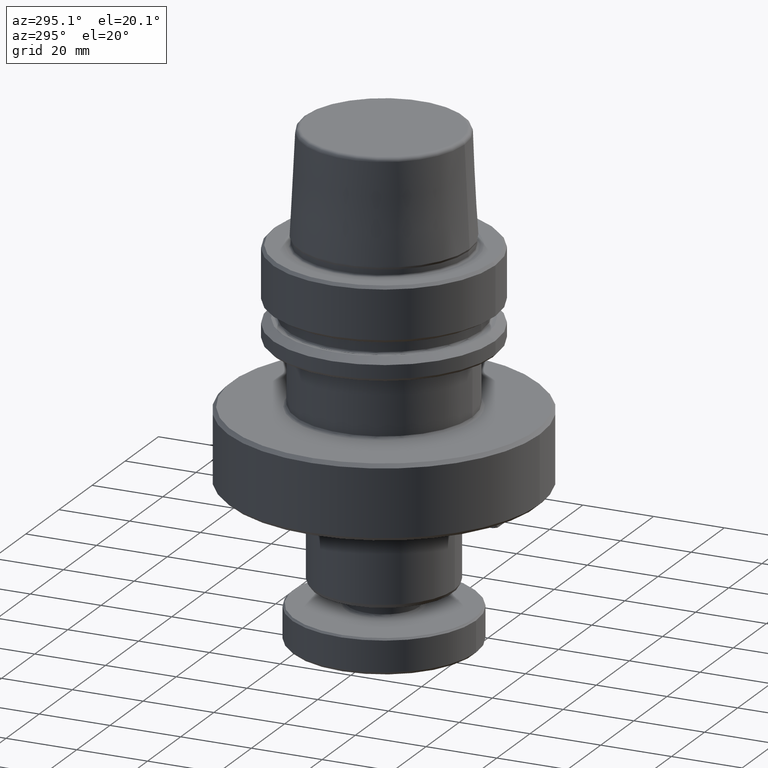
[diagram: clean part render]
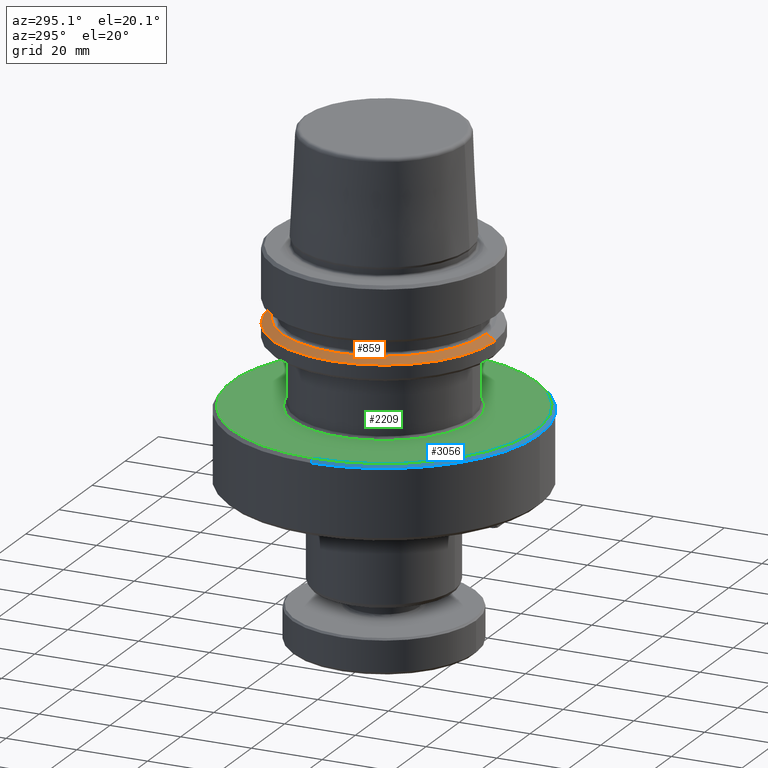
[diagram: same view with three faces highlighted in distinct colors, each labeled with its STEP entity id]
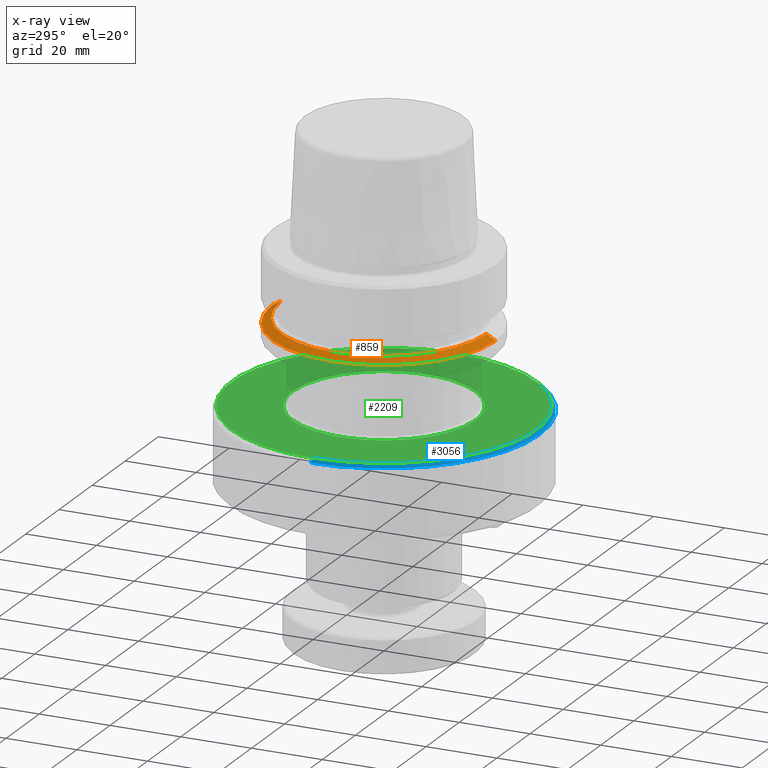
[diagram: x-ray of the same camera — body ghosted, the three highlighted faces saturated]
A machine part, auxiliary view with three faces highlighted in distinct colors.
The next image is the same camera in x-ray (body ghosted, the three faces saturated) — at least one of them is partly hidden behind the body in this view.
Their STEP definitions:

[orange] entity #859 — the highlighted conical surface has half-angle 60 deg.
#4 = CIRCLE ( 'NONE', #9, 28.94089653438187800 ) ;
#9 = AXIS2_PLACEMENT_3D ( 'NONE', #1927, #277, #2203 ) ;
#15 = CARTESIAN_POINT ( 'NONE',  ( 0.0000000000000000000, -1.394837423287449700E-016, -21.37749907477165600 ) ) ;
#50 = EDGE_LOOP ( 'NONE', ( #2646, #2135, #2986, #252 ) ) ;
#87 = CONICAL_SURFACE ( 'NONE', #782, 31.50000000000169500, 1.047197551196597900 ) ;
#220 = VERTEX_POINT ( 'NONE', #1206 ) ;
#252 = ORIENTED_EDGE ( 'NONE', *, *, #3162, .T. ) ;
#277 = DIRECTION ( 'NONE',  ( -0.0000000000000000000, 1.342951762274862300E-018, 1.000000000000000000 ) ) ;
#294 = DIRECTION ( 'NONE',  ( 0.0000000000000000000, -1.000000000000000000, 0.0000000000000000000 ) ) ;
#444 = DIRECTION ( 'NONE',  ( 0.0000000000000000000, 0.8660254037844387100, -0.4999999999999998900 ) ) ;
#705 = VERTEX_POINT ( 'NONE', #3048 ) ;
#782 = AXIS2_PLACEMENT_3D ( 'NONE', #3052, #1134, #2499 ) ;
#859 = ADVANCED_FACE ( 'NONE', ( #1003 ), #87, .T. ) ;
#986 = CARTESIAN_POINT ( 'NONE',  ( 3.857637417314370200E-015, 31.50000000000169500, -21.37749907477165600 ) ) ;
#1003 = FACE_OUTER_BOUND ( 'NONE', #50, .T. ) ;
#1134 = DIRECTION ( 'NONE',  ( 0.0000000000000000000, -1.342951762274862300E-018, -1.000000000000000000 ) ) ;
#1206 = CARTESIAN_POINT ( 'NONE',  ( 0.0000000000000000000, 28.94089653438187800, -19.90000000001195000 ) ) ;
#1356 = CARTESIAN_POINT ( 'NONE',  ( 3.857637417314370200E-015, -31.50000000000169500, -21.37749907477165600 ) ) ;
#1495 = VECTOR ( 'NONE', #444, 1000.000000000000000 ) ;
#1545 = CIRCLE ( 'NONE', #2014, 31.50000000000169500 ) ;
#1617 = EDGE_CURVE ( 'NONE', #220, #705, #4, .T. ) ;
#1660 = VERTEX_POINT ( 'NONE', #3597 ) ;
#1904 = DIRECTION ( 'NONE',  ( 1.060575238724906900E-016, -0.8660254037844387100, -0.4999999999999998900 ) ) ;
#1927 = CARTESIAN_POINT ( 'NONE',  ( 0.0000000000000000000, -1.374995323425369500E-016, -19.90000000001195000 ) ) ;
#1947 = DIRECTION ( 'NONE',  ( -0.0000000000000000000, 1.342951762274862300E-018, 1.000000000000000000 ) ) ;
#2014 = AXIS2_PLACEMENT_3D ( 'NONE', #15, #1947, #294 ) ;
#2135 = ORIENTED_EDGE ( 'NONE', *, *, #1617, .F. ) ;
#2139 = VERTEX_POINT ( 'NONE', #986 ) ;
#2203 = DIRECTION ( 'NONE',  ( 0.0000000000000000000, -1.000000000000000000, 0.0000000000000000000 ) ) ;
#2328 = VECTOR ( 'NONE', #1904, 1000.000000000000000 ) ;
#2481 = LINE ( 'NONE', #3478, #1495 ) ;
#2499 = DIRECTION ( 'NONE',  ( 0.0000000000000000000, 1.000000000000000000, 0.0000000000000000000 ) ) ;
#2580 = EDGE_CURVE ( 'NONE', #705, #1660, #3061, .T. ) ;
#2646 = ORIENTED_EDGE ( 'NONE', *, *, #2580, .F. ) ;
#2986 = ORIENTED_EDGE ( 'NONE', *, *, #3445, .T. ) ;
#3048 = CARTESIAN_POINT ( 'NONE',  ( 3.700937523921459300E-015, -28.94089653438187800, -19.90000000001195000 ) ) ;
#3052 = CARTESIAN_POINT ( 'NONE',  ( 0.0000000000000000000, -1.394837423287449700E-016, -21.37749907477165600 ) ) ;
#3061 = LINE ( 'NONE', #1356, #2328 ) ;
#3162 = EDGE_CURVE ( 'NONE', #2139, #1660, #1545, .T. ) ;
#3445 = EDGE_CURVE ( 'NONE', #220, #2139, #2481, .T. ) ;
#3478 = CARTESIAN_POINT ( 'NONE',  ( 0.0000000000000000000, 31.50000000000169500, -21.37749907477165600 ) ) ;
#3597 = CARTESIAN_POINT ( 'NONE',  ( 0.0000000000000000000, -31.50000000000169500, -21.37749907477165600 ) ) ;

[blue] entity #3056 — the highlighted conical surface has half-angle 45 deg.
#139 = CARTESIAN_POINT ( 'NONE',  ( 0.0000000000000000000, 0.0000000000000000000, -45.00000000000001400 ) ) ;
#233 = EDGE_CURVE ( 'NONE', #3278, #556, #2496, .T. ) ;
#279 = ORIENTED_EDGE ( 'NONE', *, *, #1711, .F. ) ;
#422 = DIRECTION ( 'NONE',  ( 0.0000000000000000000, 0.0000000000000000000, -1.000000000000000000 ) ) ;
#556 = VERTEX_POINT ( 'NONE', #2134 ) ;
#653 = VERTEX_POINT ( 'NONE', #829 ) ;
#671 = CARTESIAN_POINT ( 'NONE',  ( 0.0000000000000000000, 1.057649508354530300E-016, -45.00000000000001400 ) ) ;
#829 = CARTESIAN_POINT ( 'NONE',  ( 44.00000000000000000, 5.388445916248353600E-015, -45.00000000000001400 ) ) ;
#867 = DIRECTION ( 'NONE',  ( 0.0000000000000000000, 0.0000000000000000000, -1.000000000000000000 ) ) ;
#884 = ORIENTED_EDGE ( 'NONE', *, *, #233, .F. ) ;
#935 = DIRECTION ( 'NONE',  ( 0.0000000000000000000, 1.000000000000000000, 0.0000000000000000000 ) ) ;
#1062 = CONICAL_SURFACE ( 'NONE', #3566, 44.00000000000000000, 0.7853981633974482800 ) ;
#1119 = AXIS2_PLACEMENT_3D ( 'NONE', #3060, #1423, #3343 ) ;
#1423 = DIRECTION ( 'NONE',  ( 0.0000000000000000000, 5.566576359760684800E-018, -1.000000000000000000 ) ) ;
#1654 = CARTESIAN_POINT ( 'NONE',  ( 44.00000000000000000, 5.388445916248353600E-015, -45.00000000000001400 ) ) ;
#1658 = EDGE_CURVE ( 'NONE', #2021, #653, #2860, .T. ) ;
#1711 = EDGE_CURVE ( 'NONE', #653, #3278, #1950, .T. ) ;
#1858 = DIRECTION ( 'NONE',  ( -0.7071067811865474600, 0.0000000000000000000, -0.7071067811865475700 ) ) ;
#1950 = CIRCLE ( 'NONE', #1119, 44.00000000000000000 ) ;
#1971 = FACE_OUTER_BOUND ( 'NONE', #2693, .T. ) ;
#2021 = VERTEX_POINT ( 'NONE', #2609 ) ;
#2128 = VECTOR ( 'NONE', #2483, 1000.000000000000000 ) ;
#2134 = CARTESIAN_POINT ( 'NONE',  ( -44.00000000000000000, 0.0000000000000000000, -45.00000000000001400 ) ) ;
#2483 = DIRECTION ( 'NONE',  ( 0.7071067811865474600, 8.659560562354931600E-017, -0.7071067811865475700 ) ) ;
#2496 = CIRCLE ( 'NONE', #3495, 44.00000000000000000 ) ;
#2511 = EDGE_CURVE ( 'NONE', #3249, #556, #3319, .T. ) ;
#2518 = CARTESIAN_POINT ( 'NONE',  ( 0.0000000000000000000, 0.0000000000000000000, -44.00000000000002100 ) ) ;
#2535 = CARTESIAN_POINT ( 'NONE',  ( 5.388445916248353600E-015, -44.00000000000000000, -45.00000000000001400 ) ) ;
#2584 = DIRECTION ( 'NONE',  ( 0.0000000000000000000, 5.566576359760684800E-018, -1.000000000000000000 ) ) ;
#2594 = ORIENTED_EDGE ( 'NONE', *, *, #1658, .F. ) ;
#2609 = CARTESIAN_POINT ( 'NONE',  ( 43.00000000000000000, 5.327213576290986800E-015, -44.00000000000002100 ) ) ;
#2684 = VECTOR ( 'NONE', #1858, 1000.000000000000000 ) ;
#2693 = EDGE_LOOP ( 'NONE', ( #2594, #3125, #2844, #884, #279 ) ) ;
#2773 = EDGE_CURVE ( 'NONE', #2021, #3249, #3369, .T. ) ;
#2793 = CARTESIAN_POINT ( 'NONE',  ( -43.00000000000000000, 0.0000000000000000000, -44.00000000000002100 ) ) ;
#2798 = DIRECTION ( 'NONE',  ( -1.000000000000000000, 0.0000000000000000000, 0.0000000000000000000 ) ) ;
#2844 = ORIENTED_EDGE ( 'NONE', *, *, #2511, .T. ) ;
#2860 = LINE ( 'NONE', #1654, #2128 ) ;
#3056 = ADVANCED_FACE ( 'NONE', ( #1971 ), #1062, .T. ) ;
#3060 = CARTESIAN_POINT ( 'NONE',  ( 0.0000000000000000000, 1.057649508354530300E-016, -45.00000000000001400 ) ) ;
#3125 = ORIENTED_EDGE ( 'NONE', *, *, #2773, .T. ) ;
#3249 = VERTEX_POINT ( 'NONE', #2793 ) ;
#3254 = AXIS2_PLACEMENT_3D ( 'NONE', #2518, #867, #2798 ) ;
#3278 = VERTEX_POINT ( 'NONE', #2535 ) ;
#3319 = LINE ( 'NONE', #3520, #2684 ) ;
#3343 = DIRECTION ( 'NONE',  ( 0.0000000000000000000, 1.000000000000000000, 0.0000000000000000000 ) ) ;
#3369 = CIRCLE ( 'NONE', #3254, 43.00000000000000000 ) ;
#3454 = DIRECTION ( 'NONE',  ( -1.000000000000000000, 0.0000000000000000000, 0.0000000000000000000 ) ) ;
#3495 = AXIS2_PLACEMENT_3D ( 'NONE', #671, #2584, #935 ) ;
#3520 = CARTESIAN_POINT ( 'NONE',  ( -44.00000000000000000, 0.0000000000000000000, -45.00000000000001400 ) ) ;
#3566 = AXIS2_PLACEMENT_3D ( 'NONE', #139, #422, #3454 ) ;

[green] entity #2209 — the highlighted planar face has unit normal (0, -0, 1).
#51 = CARTESIAN_POINT ( 'NONE',  ( 3.159588741800171900E-015, -25.80000000000000100, -44.00000000000001400 ) ) ;
#62 = CARTESIAN_POINT ( 'NONE',  ( -4.646147094753788000, -25.37821681741874600, -44.00000000000002100 ) ) ;
#75 = CARTESIAN_POINT ( 'NONE',  ( -13.47494215624665700, -22.00346005347343600, -44.00000000000002100 ) ) ;
#84 = CARTESIAN_POINT ( 'NONE',  ( -21.53341588032837000, -14.21109007750851000, -44.00000000000002100 ) ) ;
#99 = CARTESIAN_POINT ( 'NONE',  ( -25.22750292479134500, -5.412237827912585800, -44.00000000000002100 ) ) ;
#100 = ORIENTED_EDGE ( 'NONE', *, *, #776, .T. ) ;
#106 = CARTESIAN_POINT ( 'NONE',  ( -25.40019798619532300, 4.524846068160585800, -44.00000000000001400 ) ) ;
#116 = CARTESIAN_POINT ( 'NONE',  ( -23.12779965881840700, 11.49284650511913800, -44.00000000000002800 ) ) ;
#123 = DIRECTION ( 'NONE',  ( 0.0000000000000000000, 0.0000000000000000000, -1.000000000000000000 ) ) ;
#126 = CARTESIAN_POINT ( 'NONE',  ( -14.44259721332349100, 21.37928729366193900, -44.00000000000001400 ) ) ;
#143 = CARTESIAN_POINT ( 'NONE',  ( -7.535404113839290700, 24.70003495132506900, -44.00000000000003600 ) ) ;
#166 = CARTESIAN_POINT ( 'NONE',  ( 4.524864639360868200, 25.40019454994415300, -44.00000000000001400 ) ) ;
#175 = CARTESIAN_POINT ( 'NONE',  ( 11.49284650508246700, 23.12779965883751700, -44.00000000000002100 ) ) ;
#189 = CARTESIAN_POINT ( 'NONE',  ( 21.37928729366629100, 14.44259721331797900, -44.00000000000002100 ) ) ;
#198 = CARTESIAN_POINT ( 'NONE',  ( 24.70003495132065300, 7.535404113886145600, -44.00000000000002100 ) ) ;
#207 = CARTESIAN_POINT ( 'NONE',  ( 25.48706632873925000, -4.014918217729788600, -44.00000000000001400 ) ) ;
#224 = CARTESIAN_POINT ( 'NONE',  ( 24.00859108745828500, -9.446187900193358200, -44.00000000000003600 ) ) ;
#238 = CARTESIAN_POINT ( 'NONE',  ( 15.39733050729729400, -20.71037158427629200, -44.00000000000002800 ) ) ;
#247 = CARTESIAN_POINT ( 'NONE',  ( 9.545456535214857000, -23.96929158735009900, -44.00000000000001400 ) ) ;
#281 = CARTESIAN_POINT ( 'NONE',  ( -1.578232523932755500, 25.80000000000001100, -44.00000000000002800 ) ) ;
#299 = CARTESIAN_POINT ( 'NONE',  ( 0.0000000000000000000, 25.80000000000000100, -44.00000000000001400 ) ) ;
#321 = CARTESIAN_POINT ( 'NONE',  ( -0.7889384917465004400, -25.80000000000000800, -44.00000000000004300 ) ) ;
#341 = CARTESIAN_POINT ( 'NONE',  ( -5.517234247986863200, -25.21707412533733400, -44.00000000000002800 ) ) ;
#355 = CARTESIAN_POINT ( 'NONE',  ( -13.93514321310749800, -21.71301370394710500, -44.00000000000002100 ) ) ;
#366 = CARTESIAN_POINT ( 'NONE',  ( -22.07149427188638300, -13.38842431697809900, -44.00000000000003600 ) ) ;
#378 = CARTESIAN_POINT ( 'NONE',  ( -25.33543056681472500, -4.874507129608150400, -44.00000000000002100 ) ) ;
#386 = CARTESIAN_POINT ( 'NONE',  ( -25.37821782295765500, 4.646141660323854300, -44.00000000000000700 ) ) ;
#401 = CARTESIAN_POINT ( 'NONE',  ( -22.00346005345332400, 13.47494215628029000, -44.00000000000003600 ) ) ;
#410 = CARTESIAN_POINT ( 'NONE',  ( -14.21109007751056000, 21.53341588032704500, -44.00000000000002100 ) ) ;
#424 = CARTESIAN_POINT ( 'NONE',  ( -5.412237827916562200, 25.22750292479022200, -44.00000000000002100 ) ) ;
#451 = CARTESIAN_POINT ( 'NONE',  ( 4.646147094753429100, 25.37821681741872100, -44.00000000000002800 ) ) ;
#463 = CARTESIAN_POINT ( 'NONE',  ( 13.47494215626425700, 22.00346005346168000, -44.00000000000002100 ) ) ;
#473 = CARTESIAN_POINT ( 'NONE',  ( 21.53341588032834200, 14.21109007750890100, -44.00000000000003600 ) ) ;
#481 = CARTESIAN_POINT ( 'NONE',  ( 25.22750292478829000, 5.412237827937061300, -44.00000000000000700 ) ) ;
#498 = CARTESIAN_POINT ( 'NONE',  ( 25.40019798619532000, -4.524846068166298500, -44.00000000000001400 ) ) ;
#507 = B_SPLINE_CURVE_WITH_KNOTS ( 'NONE', 3,
 ( #51, #321, #2815, #1164, #3092, #1447, #3367, #1720, #62, #1994, #341, #2271, #631, #2541, #894, #2826, #1174, #3102, #1456, #3383, #1727, #75, #2005, #355, #2279, #646, #2557, #905, #2837, #1189, #3114, #1467, #3392, #1741, #84, #2019, #366, #2292, #655, #2569, #917, #2851, #1198, #3126, #1476, #3406, #1755, #99, #2026, #378, #2304, #665, #2579, #930, #2861, #1209, #3133, #1490, #3415, #1764, #106, #2040, #386, #2313, #677, #2590, #940, #2871, #1224, #3141, #1500, #3431, #1773, #116, #2051, #401, #2321, #692, #2607, #952, #2882, #1239, #3157, #1509, #3443, #1791, #126, #2063, #410, #2340, #700, #2621, #969, #2894, #1253, #3168, #1525, #3456, #1805, #143, #2074, #424, #2355, #715, #2631, #983, #2909, #1932, #281, #2210 ),
 .UNSPECIFIED., .F., .F.,
 ( 4, 1, 1, 1, 1, 1, 2, 2, 1, 1, 1, 1, 2, 2, 1, 1, 1, 1, 2, 2, 2, 1, 1, 1, 1, 2, 2, 1, 1, 1, 1, 2, 2, 1, 1, 1, 1, 1, 2, 2, 2, 1, 1, 1, 1, 1, 2, 2, 1, 1, 1, 1, 2, 2, 1, 1, 1, 1, 2, 2, 2, 1, 1, 1, 1, 2, 2, 1, 1, 1, 1, 2, 2, 1, 1, 1, 1, 1, 2, 2, 4 ),
 ( 0.0000000000000000000, 0.03125000000000045100, 0.04687500000000068000, 0.05468750000000079100, 0.05859375000000084700, 0.06054687500000086000, 0.06152343750000085300, 0.06250000000000084700, 0.09375000000000098500, 0.1093750000000010700, 0.1171875000000011100, 0.1210937500000011500, 0.1230468750000011400, 0.1250000000000011100, 0.1562500000000002800, 0.1718749999999998300, 0.1796874999999996400, 0.1835937499999996100, 0.1855468749999995800, 0.1874999999999995600, 0.2499999999999981100, 0.2812499999999973900, 0.2968749999999970600, 0.3046874999999969500, 0.3085937499999968900, 0.3105468749999968900, 0.3124999999999968400, 0.3437499999999970600, 0.3593749999999971700, 0.3671874999999972800, 0.3710937499999973400, 0.3730468749999973400, 0.3749999999999972800, 0.4062499999999975600, 0.4218749999999976700, 0.4296874999999977200, 0.4335937499999977200, 0.4355468749999977200, 0.4365234374999977200, 0.4374999999999977800, 0.4999999999999976700, 0.5312499999999975600, 0.5468749999999975600, 0.5546874999999975600, 0.5585937499999975600, 0.5605468749999975600, 0.5615234374999975600, 0.5624999999999975600, 0.5937499999999968900, 0.6093749999999965600, 0.6171874999999963400, 0.6210937499999963400, 0.6230468749999963400, 0.6249999999999963400, 0.6562499999999964500, 0.6718749999999964500, 0.6796874999999964500, 0.6835937499999965600, 0.6855468749999965600, 0.6874999999999965600, 0.7499999999999973400, 0.7812499999999977800, 0.7968749999999980000, 0.8046874999999980000, 0.8085937499999980000, 0.8105468749999980000, 0.8124999999999981100, 0.8437499999999987800, 0.8593749999999991100, 0.8671874999999992200, 0.8710937499999992200, 0.8730468749999992200, 0.8749999999999993300, 0.9062500000000000000, 0.9218750000000003300, 0.9296875000000004400, 0.9335937500000004400, 0.9355468750000005600, 0.9365234375000005600, 0.9375000000000005600, 1.000000000000000000 ),
 .UNSPECIFIED. ) ;
#508 = CARTESIAN_POINT ( 'NONE',  ( 23.12779965883214900, -11.49284650510926100, -44.00000000000002100 ) ) ;
#518 = CARTESIAN_POINT ( 'NONE',  ( 14.44259721331151900, -21.37928729367038400, -44.00000000000002100 ) ) ;
#531 = CARTESIAN_POINT ( 'NONE',  ( 7.535404113869419400, -24.70003495132476700, -44.00000000000002100 ) ) ;
#599 = CIRCLE ( 'NONE', #2998, 43.00000000000000000 ) ;
#631 = CARTESIAN_POINT ( 'NONE',  ( -8.125368334782336900, -24.49352279962959100, -44.00000000000002800 ) ) ;
#646 = CARTESIAN_POINT ( 'NONE',  ( -14.07143322275118700, -21.62493478718439400, -44.00000000000002100 ) ) ;
#655 = CARTESIAN_POINT ( 'NONE',  ( -23.39264884936471500, -10.89798138207336800, -44.00000000000002100 ) ) ;
#665 = CARTESIAN_POINT ( 'NONE',  ( -25.35972166253509000, -4.746068474944360500, -44.00000000000001400 ) ) ;
#675 = EDGE_LOOP ( 'NONE', ( #1949, #2911 ) ) ;
#677 = CARTESIAN_POINT ( 'NONE',  ( -25.21707412534086100, 5.517234247999487800, -44.00000000000002100 ) ) ;
#692 = CARTESIAN_POINT ( 'NONE',  ( -21.71301370394078100, 13.93514321311804800, -44.00000000000002100 ) ) ;
#700 = CARTESIAN_POINT ( 'NONE',  ( -13.38842431698046900, 22.07149427188483100, -44.00000000000002800 ) ) ;
#715 = CARTESIAN_POINT ( 'NONE',  ( -4.874507129609254400, 25.33543056681440600, -44.00000000000000700 ) ) ;
#736 = CARTESIAN_POINT ( 'NONE',  ( 3.159588741800171900E-015, -25.80000000000000100, -44.00000000000001400 ) ) ;
#740 = CARTESIAN_POINT ( 'NONE',  ( 5.517234248010011800, 25.21707412533417200, -44.00000000000001400 ) ) ;
#750 = CARTESIAN_POINT ( 'NONE',  ( 13.93514321311302100, 21.71301370394340300, -44.00000000000002100 ) ) ;
#765 = CARTESIAN_POINT ( 'NONE',  ( 22.07149427186617500, 13.38842431700634200, -44.00000000000004300 ) ) ;
#774 = CARTESIAN_POINT ( 'NONE',  ( 25.33543056681388000, 4.874507129614920900, -44.00000000000001400 ) ) ;
#776 = EDGE_CURVE ( 'NONE', #2745, #1177, #1793, .T. ) ;
#780 = CARTESIAN_POINT ( 'NONE',  ( 25.37821782295765900, -4.646141660325528600, -44.00000000000001400 ) ) ;
#788 = CARTESIAN_POINT ( 'NONE',  ( 22.00346005345933200, -13.47494215627596900, -44.00000000000002100 ) ) ;
#799 = CARTESIAN_POINT ( 'NONE',  ( 14.21109007750696700, -21.53341588032957400, -44.00000000000001400 ) ) ;
#812 = CARTESIAN_POINT ( 'NONE',  ( 5.412237827929740100, -25.22750292479009800, -44.00000000000001400 ) ) ;
#867 = DIRECTION ( 'NONE',  ( 0.0000000000000000000, 0.0000000000000000000, -1.000000000000000000 ) ) ;
#894 = CARTESIAN_POINT ( 'NONE',  ( -9.155797560476431200, -24.12117611923910200, -44.00000000000001400 ) ) ;
#905 = CARTESIAN_POINT ( 'NONE',  ( -16.98414031319189000, -19.50251703443400700, -44.00000000000002800 ) ) ;
#917 = CARTESIAN_POINT ( 'NONE',  ( -23.84596436449473300, -9.850459048703518400, -44.00000000000002800 ) ) ;
#930 = CARTESIAN_POINT ( 'NONE',  ( -25.65639372325769300, -3.143290083947218900, -44.00000000000002100 ) ) ;
#940 = CARTESIAN_POINT ( 'NONE',  ( -24.49352279963422100, 8.125368334798922700, -44.00000000000002100 ) ) ;
#952 = CARTESIAN_POINT ( 'NONE',  ( -21.62493478718416300, 14.07143322275177200, -44.00000000000002100 ) ) ;
#969 = CARTESIAN_POINT ( 'NONE',  ( -10.89798138207648000, 23.39264884936270100, -44.00000000000002100 ) ) ;
#983 = CARTESIAN_POINT ( 'NONE',  ( -4.746068474944679300, 25.35972166253499400, -44.00000000000001400 ) ) ;
#1008 = CARTESIAN_POINT ( 'NONE',  ( 8.125368334812725000, 24.49352279962543500, -44.00000000000002100 ) ) ;
#1020 = CARTESIAN_POINT ( 'NONE',  ( 14.07143322275177500, 21.62493478718398200, -44.00000000000002100 ) ) ;
#1030 = CARTESIAN_POINT ( 'NONE',  ( 23.39264884933820100, 10.89798138211043200, -44.00000000000002800 ) ) ;
#1036 = CARTESIAN_POINT ( 'NONE',  ( 25.35972166253484900, 4.746068474946335800, -44.00000000000002100 ) ) ;
#1051 = CARTESIAN_POINT ( 'NONE',  ( 25.21707412533565300, -5.517234247999045500, -44.00000000000003600 ) ) ;
#1060 = CARTESIAN_POINT ( 'NONE',  ( 21.71301370394265700, -13.93514321311668700, -44.00000000000001400 ) ) ;
#1068 = CARTESIAN_POINT ( 'NONE',  ( 13.38842431700157400, -22.07149427186955700, -44.00000000000001400 ) ) ;
#1077 = CARTESIAN_POINT ( 'NONE',  ( 4.874507129612902100, -25.33543056681438400, -44.00000000000002800 ) ) ;
#1164 = CARTESIAN_POINT ( 'NONE',  ( -3.333902576198189300, -25.58912593481184300, -44.00000000000002800 ) ) ;
#1174 = CARTESIAN_POINT ( 'NONE',  ( -9.399532011116248100, -24.02689128177408100, -44.00000000000002800 ) ) ;
#1177 = VERTEX_POINT ( 'NONE', #736 ) ;
#1189 = CARTESIAN_POINT ( 'NONE',  ( -19.76405892020986200, -16.62592022010995100, -44.00000000000002100 ) ) ;
#1198 = CARTESIAN_POINT ( 'NONE',  ( -23.94825983276295400, -9.598114452495746500, -44.00000000000002100 ) ) ;
#1209 = CARTESIAN_POINT ( 'NONE',  ( -25.80001621530506000, 0.7888508562149739700, -44.00000000000002800 ) ) ;
#1224 = CARTESIAN_POINT ( 'NONE',  ( -24.12117611924054500, 9.155797560481618200, -44.00000000000002800 ) ) ;
#1239 = CARTESIAN_POINT ( 'NONE',  ( -19.50251703440085600, 16.98414031321356200, -44.00000000000002800 ) ) ;
#1253 = CARTESIAN_POINT ( 'NONE',  ( -9.850459048704493600, 23.84596436449410100, -44.00000000000003600 ) ) ;
#1278 = CARTESIAN_POINT ( 'NONE',  ( 0.7889384917407656900, 25.80000000000000400, -44.00000000000002800 ) ) ;
#1288 = CARTESIAN_POINT ( 'NONE',  ( 9.155797560485925900, 24.12117611923781600, -44.00000000000002100 ) ) ;
#1295 = CARTESIAN_POINT ( 'NONE',  ( 16.98414031319243700, 19.50251703442773300, -44.00000000000002800 ) ) ;
#1299 = DIRECTION ( 'NONE',  ( 0.0000000000000000000, -1.000000000000000000, -5.566576359760684800E-018 ) ) ;
#1308 = CARTESIAN_POINT ( 'NONE',  ( 23.84596436448645600, 9.850459048715102000, -44.00000000000002100 ) ) ;
#1322 = CARTESIAN_POINT ( 'NONE',  ( 25.65639372325771100, 3.143290083927562600, -44.00000000000003600 ) ) ;
#1331 = CARTESIAN_POINT ( 'NONE',  ( 24.49352279962736700, -8.125368334798331200, -44.00000000000002100 ) ) ;
#1339 = CARTESIAN_POINT ( 'NONE',  ( 21.62493478718594300, -14.07143322274945300, -44.00000000000002800 ) ) ;
#1348 = FACE_BOUND ( 'NONE', #1695, .T. ) ;
#1354 = CARTESIAN_POINT ( 'NONE',  ( 10.89798138210419000, -23.39264884934263800, -44.00000000000001400 ) ) ;
#1369 = CARTESIAN_POINT ( 'NONE',  ( 4.746068474945748700, -25.35972166253497700, -44.00000000000002800 ) ) ;
#1437 = FACE_OUTER_BOUND ( 'NONE', #675, .T. ) ;
#1447 = CARTESIAN_POINT ( 'NONE',  ( -4.354993695309938900, -25.43012913300111300, -44.00000000000001400 ) ) ;
#1456 = CARTESIAN_POINT ( 'NONE',  ( -10.30733321070539800, -23.66769144666777800, -44.00000000000003600 ) ) ;
#1467 = CARTESIAN_POINT ( 'NONE',  ( -21.16020289421184200, -14.76401221697290800, -44.00000000000002100 ) ) ;
#1476 = CARTESIAN_POINT ( 'NONE',  ( -24.29648344838202300, -8.719035050377346600, -44.00000000000002800 ) ) ;
#1490 = CARTESIAN_POINT ( 'NONE',  ( -25.58914721739974500, 3.333787554563061800, -44.00000000000002100 ) ) ;
#1500 = CARTESIAN_POINT ( 'NONE',  ( -24.02689128177451000, 9.399532011117806000, -44.00000000000002800 ) ) ;
#1509 = CARTESIAN_POINT ( 'NONE',  ( -16.62592022013896900, 19.76405892019089100, -44.00000000000002100 ) ) ;
#1525 = CARTESIAN_POINT ( 'NONE',  ( -9.598114452496028900, 23.94825983276276600, -44.00000000000001400 ) ) ;
#1549 = CARTESIAN_POINT ( 'NONE',  ( 3.333902576190655800, 25.58912593481185700, -44.00000000000001400 ) ) ;
#1555 = PLANE ( 'NONE',  #3205 ) ;
#1561 = CARTESIAN_POINT ( 'NONE',  ( 9.399532011119097400, 24.02689128177368300, -44.00000000000002100 ) ) ;
#1575 = CARTESIAN_POINT ( 'NONE',  ( 19.76405892020941100, 16.62592022011544700, -44.00000000000003600 ) ) ;
#1583 = CARTESIAN_POINT ( 'NONE',  ( 23.94825983276047800, 9.598114452499206800, -44.00000000000004300 ) ) ;
#1589 = CARTESIAN_POINT ( 'NONE',  ( 25.80001621530505300, -0.7888508562419733700, -44.00000000000002800 ) ) ;
#1600 = CARTESIAN_POINT ( 'NONE',  ( 24.12117611923841300, -9.155797560481419200, -44.00000000000001400 ) ) ;
#1614 = CARTESIAN_POINT ( 'NONE',  ( 19.50251703445925200, -16.98414031317239300, -44.00000000000002800 ) ) ;
#1626 = CARTESIAN_POINT ( 'NONE',  ( 9.850459048713144500, -23.84596436448784100, -44.00000000000002100 ) ) ;
#1636 = CARTESIAN_POINT ( 'NONE',  ( 3.143114774646571500, -25.65642616838253800, -44.00000000000002800 ) ) ;
#1695 = EDGE_LOOP ( 'NONE', ( #100, #3055 ) ) ;
#1698 = CARTESIAN_POINT ( 'NONE',  ( 0.0000000000000000000, 25.80000000000000100, -44.00000000000001400 ) ) ;
#1720 = CARTESIAN_POINT ( 'NONE',  ( -4.597637919647716800, -25.38704997307489500, -44.00000000000001400 ) ) ;
#1727 = CARTESIAN_POINT ( 'NONE',  ( -12.82305814050091400, -22.39533791972138100, -44.00000000000002100 ) ) ;
#1737 = EDGE_CURVE ( 'NONE', #1177, #2745, #507, .T. ) ;
#1741 = CARTESIAN_POINT ( 'NONE',  ( -21.47193105296414800, -14.30382881350280600, -44.00000000000002800 ) ) ;
#1755 = CARTESIAN_POINT ( 'NONE',  ( -25.06870380570258700, -6.124894413405167300, -44.00000000000002100 ) ) ;
#1764 = CARTESIAN_POINT ( 'NONE',  ( -25.43013578380982800, 4.354957751048955200, -44.00000000000000700 ) ) ;
#1773 = CARTESIAN_POINT ( 'NONE',  ( -23.66769144664149500, 10.30733321074933100, -44.00000000000002100 ) ) ;
#1788 = CARTESIAN_POINT ( 'NONE',  ( 0.0000000000000000000, 0.0000000000000000000, -44.00000000000002100 ) ) ;
#1791 = CARTESIAN_POINT ( 'NONE',  ( -14.76401221698559000, 21.16020289420354000, -44.00000000000002100 ) ) ;
#1793 = B_SPLINE_CURVE_WITH_KNOTS ( 'NONE', 3,
 ( #1698, #1278, #3189, #1549, #3482, #1824, #166, #2102, #451, #2371, #740, #2658, #1008, #2931, #1288, #3201, #1561, #3494, #1836, #175, #2114, #463, #2386, #750, #2671, #1020, #2942, #1295, #3217, #1575, #3505, #1844, #189, #2124, #473, #2396, #765, #2680, #1030, #2951, #1308, #3224, #1583, #3517, #1856, #198, #2138, #481, #2406, #774, #2695, #1036, #2962, #1322, #3236, #1589, #3530, #1868, #207, #2146, #498, #2417, #780, #2705, #1051, #2969, #1331, #3251, #1600, #3538, #1880, #224, #2154, #508, #2433, #788, #2716, #1060, #2984, #1339, #3262, #1614, #3551, #1888, #238, #2166, #518, #2441, #799, #2730, #1068, #2995, #1354, #3268, #1626, #3562, #1901, #247, #2180, #531, #2449, #812, #2739, #1077, #3005, #1369, #3283, #1636, #3576, #1912 ),
 .UNSPECIFIED., .F., .F.,
 ( 4, 1, 1, 1, 1, 1, 2, 2, 1, 1, 1, 1, 2, 2, 1, 1, 1, 1, 2, 2, 2, 1, 1, 1, 1, 2, 2, 1, 1, 1, 1, 2, 2, 1, 1, 1, 1, 1, 2, 2, 2, 1, 1, 1, 1, 1, 2, 2, 1, 1, 1, 1, 2, 2, 1, 1, 1, 1, 2, 2, 2, 1, 1, 1, 1, 2, 2, 1, 1, 1, 1, 2, 2, 1, 1, 1, 1, 1, 2, 2, 4 ),
 ( 0.0000000000000000000, 0.03124999999999947300, 0.04687499999999921600, 0.05468749999999907000, 0.05859374999999900100, 0.06054687499999894500, 0.06152343749999891800, 0.06249999999999889700, 0.09374999999999905600, 0.1093749999999991400, 0.1171874999999992000, 0.1210937499999992400, 0.1230468749999992600, 0.1249999999999993100, 0.1562499999999996100, 0.1718749999999997500, 0.1796874999999998100, 0.1835937499999998100, 0.1855468749999998300, 0.1874999999999998600, 0.2499999999999987200, 0.2812499999999981100, 0.2968749999999978400, 0.3046874999999976100, 0.3085937499999974500, 0.3105468749999973900, 0.3124999999999972800, 0.3437499999999960000, 0.3593749999999953900, 0.3671874999999950600, 0.3710937499999949500, 0.3730468749999948900, 0.3749999999999947800, 0.4062499999999942300, 0.4218749999999939500, 0.4296874999999937800, 0.4335937499999937300, 0.4355468749999937300, 0.4365234374999936700, 0.4374999999999936700, 0.4999999999999927800, 0.5312499999999923400, 0.5468749999999921200, 0.5546874999999920100, 0.5585937499999919000, 0.5605468749999919000, 0.5615234374999919000, 0.5624999999999917800, 0.5937499999999916700, 0.6093749999999914500, 0.6171874999999914500, 0.6210937499999914500, 0.6230468749999913400, 0.6249999999999913400, 0.6562499999999916700, 0.6718749999999919000, 0.6796874999999920100, 0.6835937499999920100, 0.6855468749999920100, 0.6874999999999919000, 0.7499999999999925600, 0.7812499999999927800, 0.7968749999999930100, 0.8046874999999931200, 0.8085937499999931200, 0.8105468749999932300, 0.8124999999999932300, 0.8437499999999942300, 0.8593749999999946700, 0.8671874999999948900, 0.8710937499999951200, 0.8730468749999951200, 0.8749999999999952300, 0.9062499999999964500, 0.9218749999999971100, 0.9296874999999974500, 0.9335937499999975600, 0.9355468749999976700, 0.9365234374999976700, 0.9374999999999975600, 1.000000000000000000 ),
 .UNSPECIFIED. ) ;
#1805 = CARTESIAN_POINT ( 'NONE',  ( -8.719035050382514000, 24.29648344838056000, -44.00000000000002100 ) ) ;
#1824 = CARTESIAN_POINT ( 'NONE',  ( 4.354993695307582500, 25.43012913300111300, -44.00000000000002100 ) ) ;
#1836 = CARTESIAN_POINT ( 'NONE',  ( 10.30733321072838000, 23.66769144665242300, -44.00000000000003600 ) ) ;
#1844 = CARTESIAN_POINT ( 'NONE',  ( 21.16020289421163300, 14.76401221697529200, -44.00000000000002800 ) ) ;
#1856 = CARTESIAN_POINT ( 'NONE',  ( 24.29648344837803400, 8.719035050409285500, -44.00000000000002800 ) ) ;
#1868 = CARTESIAN_POINT ( 'NONE',  ( 25.58914721739975200, -3.333787554598507200, -44.00000000000002800 ) ) ;
#1880 = CARTESIAN_POINT ( 'NONE',  ( 24.02689128177387400, -9.399532011117745600, -44.00000000000001400 ) ) ;
#1888 = CARTESIAN_POINT ( 'NONE',  ( 16.62592022008787000, -19.76405892022693300, -44.00000000000002800 ) ) ;
#1901 = CARTESIAN_POINT ( 'NONE',  ( 9.598114452498615300, -23.94825983276089300, -44.00000000000002800 ) ) ;
#1912 = CARTESIAN_POINT ( 'NONE',  ( 3.159588741800171900E-015, -25.80000000000000100, -44.00000000000001400 ) ) ;
#1932 = CARTESIAN_POINT ( 'NONE',  ( -3.143114774677247400, 25.65642616838253800, -44.00000000000003600 ) ) ;
#1949 = ORIENTED_EDGE ( 'NONE', *, *, #3015, .F. ) ;
#1994 = CARTESIAN_POINT ( 'NONE',  ( -4.668940892991038500, -25.37403489201669200, -44.00000000000002800 ) ) ;
#2005 = CARTESIAN_POINT ( 'NONE',  ( -13.79757871362362600, -21.80110937118034900, -44.00000000000001400 ) ) ;
#2019 = CARTESIAN_POINT ( 'NONE',  ( -21.56467105928837600, -14.16361084485908800, -44.00000000000002100 ) ) ;
#2021 = VERTEX_POINT ( 'NONE', #2609 ) ;
#2026 = CARTESIAN_POINT ( 'NONE',  ( -25.30051865731104100, -5.054059101346297200, -44.00000000000001400 ) ) ;
#2040 = CARTESIAN_POINT ( 'NONE',  ( -25.38705196039986600, 4.597627179160212100, -44.00000000000002100 ) ) ;
#2051 = CARTESIAN_POINT ( 'NONE',  ( -22.39533791968689200, 12.82305814055856500, -44.00000000000002100 ) ) ;
#2062 = DIRECTION ( 'NONE',  ( -1.000000000000000000, 0.0000000000000000000, 0.0000000000000000000 ) ) ;
#2063 = CARTESIAN_POINT ( 'NONE',  ( -14.30382881350679000, 21.47193105296154100, -44.00000000000003600 ) ) ;
#2074 = CARTESIAN_POINT ( 'NONE',  ( -6.124894413411956500, 25.06870380570066500, -44.00000000000002100 ) ) ;
#2102 = CARTESIAN_POINT ( 'NONE',  ( 4.597637919647011600, 25.38704997307487700, -44.00000000000002800 ) ) ;
#2114 = CARTESIAN_POINT ( 'NONE',  ( 12.82305814053107300, 22.39533791970122700, -44.00000000000002800 ) ) ;
#2124 = CARTESIAN_POINT ( 'NONE',  ( 21.47193105296407400, 14.30382881350356300, -44.00000000000002100 ) ) ;
#2138 = CARTESIAN_POINT ( 'NONE',  ( 25.06870380569735700, 6.124894413447084900, -44.00000000000002100 ) ) ;
#2146 = CARTESIAN_POINT ( 'NONE',  ( 25.43013578380983500, -4.354957751060037900, -44.00000000000002800 ) ) ;
#2154 = CARTESIAN_POINT ( 'NONE',  ( 23.66769144664935400, -10.30733321074369100, -44.00000000000003600 ) ) ;
#2166 = CARTESIAN_POINT ( 'NONE',  ( 14.76401221696323100, -21.16020289421930700, -44.00000000000000700 ) ) ;
#2180 = CARTESIAN_POINT ( 'NONE',  ( 8.719035050399730500, -24.29648344838038900, -44.00000000000002800 ) ) ;
#2209 = ADVANCED_FACE ( 'NONE', ( #1437, #1348 ), #1555, .T. ) ;
#2210 = CARTESIAN_POINT ( 'NONE',  ( 0.0000000000000000000, 25.80000000000000100, -44.00000000000001400 ) ) ;
#2271 = CARTESIAN_POINT ( 'NONE',  ( -6.734449464109880000, -24.93032829826250900, -44.00000000000002100 ) ) ;
#2279 = CARTESIAN_POINT ( 'NONE',  ( -14.02669547702550700, -21.65397793773592000, -44.00000000000004300 ) ) ;
#2292 = CARTESIAN_POINT ( 'NONE',  ( -22.72850858096644800, -12.26358781037912000, -44.00000000000001400 ) ) ;
#2304 = CARTESIAN_POINT ( 'NONE',  ( -25.35005082301141100, -4.797457154194308500, -44.00000000000002800 ) ) ;
#2313 = CARTESIAN_POINT ( 'NONE',  ( -25.37403489201657800, 4.668940892990642400, -44.00000000000001400 ) ) ;
#2321 = CARTESIAN_POINT ( 'NONE',  ( -21.80110937116957700, 13.79757871364164100, -44.00000000000001400 ) ) ;
#2340 = CARTESIAN_POINT ( 'NONE',  ( -14.16361084485893700, 21.56467105928847200, -44.00000000000000700 ) ) ;
#2355 = CARTESIAN_POINT ( 'NONE',  ( -5.054059101348424400, 25.30051865731044800, -44.00000000000002800 ) ) ;
#2371 = CARTESIAN_POINT ( 'NONE',  ( 4.668940892990312000, 25.37403489201679100, -44.00000000000001400 ) ) ;
#2386 = CARTESIAN_POINT ( 'NONE',  ( 13.79757871363305800, 21.80110937117405400, -44.00000000000001400 ) ) ;
#2396 = CARTESIAN_POINT ( 'NONE',  ( 21.56467105928965100, 14.16361084485732600, -44.00000000000002800 ) ) ;
#2406 = CARTESIAN_POINT ( 'NONE',  ( 25.30051865730940700, 5.054059101359391600, -44.00000000000002100 ) ) ;
#2417 = CARTESIAN_POINT ( 'NONE',  ( 25.38705196039986600, -4.597627179163519700, -44.00000000000002800 ) ) ;
#2433 = CARTESIAN_POINT ( 'NONE',  ( 22.39533791969720200, -12.82305814055114500, -44.00000000000001400 ) ) ;
#2441 = CARTESIAN_POINT ( 'NONE',  ( 14.30382881349977400, -21.47193105296649700, -44.00000000000002100 ) ) ;
#2449 = CARTESIAN_POINT ( 'NONE',  ( 6.124894413434543800, -25.06870380570043400, -44.00000000000002100 ) ) ;
#2518 = CARTESIAN_POINT ( 'NONE',  ( 0.0000000000000000000, 0.0000000000000000000, -44.00000000000002100 ) ) ;
#2541 = CARTESIAN_POINT ( 'NONE',  ( -8.813536383084137800, -24.24955287521839500, -44.00000000000002800 ) ) ;
#2557 = CARTESIAN_POINT ( 'NONE',  ( -15.60852090407207100, -20.62006506165959200, -44.00000000000002800 ) ) ;
#2569 = CARTESIAN_POINT ( 'NONE',  ( -23.69912487718174200, -10.20185387526876800, -44.00000000000002100 ) ) ;
#2579 = CARTESIAN_POINT ( 'NONE',  ( -25.36479232986464500, -4.718886700175312800, -44.00000000000002100 ) ) ;
#2590 = CARTESIAN_POINT ( 'NONE',  ( -24.93032829826866600, 6.734449464131985900, -44.00000000000002100 ) ) ;
#2607 = CARTESIAN_POINT ( 'NONE',  ( -21.65397793773267300, 14.02669547703091100, -44.00000000000002800 ) ) ;
#2609 = CARTESIAN_POINT ( 'NONE',  ( 43.00000000000000000, 5.327213576290986800E-015, -44.00000000000002100 ) ) ;
#2621 = CARTESIAN_POINT ( 'NONE',  ( -12.26358781038326400, 22.72850858096373400, -44.00000000000002100 ) ) ;
#2631 = CARTESIAN_POINT ( 'NONE',  ( -4.797457154194941800, 25.35005082301121600, -44.00000000000002100 ) ) ;
#2658 = CARTESIAN_POINT ( 'NONE',  ( 6.734449464150395100, 24.93032829825697800, -44.00000000000002800 ) ) ;
#2671 = CARTESIAN_POINT ( 'NONE',  ( 14.02669547702834100, 21.65397793773401200, -44.00000000000002100 ) ) ;
#2675 = CARTESIAN_POINT ( 'NONE',  ( 0.0000000000000000000, 43.00000000000000000, -44.00000000000002100 ) ) ;
#2680 = CARTESIAN_POINT ( 'NONE',  ( 22.72850858093108100, 12.26358781042854100, -44.00000000000002800 ) ) ;
#2695 = CARTESIAN_POINT ( 'NONE',  ( 25.35005082301092100, 4.797457154198218300, -44.00000000000002100 ) ) ;
#2705 = CARTESIAN_POINT ( 'NONE',  ( 25.37403489201674100, -4.668940892990657500, -44.00000000000001400 ) ) ;
#2716 = CARTESIAN_POINT ( 'NONE',  ( 21.80110937117281000, -13.79757871363933600, -44.00000000000002100 ) ) ;
#2730 = CARTESIAN_POINT ( 'NONE',  ( 14.16361084485761900, -21.56467105928943100, -44.00000000000002100 ) ) ;
#2739 = CARTESIAN_POINT ( 'NONE',  ( 5.054059101355487200, -25.30051865731037000, -44.00000000000001400 ) ) ;
#2745 = VERTEX_POINT ( 'NONE', #299 ) ;
#2773 = EDGE_CURVE ( 'NONE', #2021, #3249, #3369, .T. ) ;
#2793 = CARTESIAN_POINT ( 'NONE',  ( -43.00000000000000000, 0.0000000000000000000, -44.00000000000002100 ) ) ;
#2798 = DIRECTION ( 'NONE',  ( -1.000000000000000000, 0.0000000000000000000, 0.0000000000000000000 ) ) ;
#2815 = CARTESIAN_POINT ( 'NONE',  ( -1.967473204585545900, -25.74615981314345300, -44.00000000000002100 ) ) ;
#2826 = CARTESIAN_POINT ( 'NONE',  ( -9.302090312196275700, -24.06478783943932200, -44.00000000000000700 ) ) ;
#2837 = CARTESIAN_POINT ( 'NONE',  ( -18.87296227532344900, -17.61377391470240300, -44.00000000000002800 ) ) ;
#2851 = CARTESIAN_POINT ( 'NONE',  ( -23.90752446050125400, -9.699147464497802000, -44.00000000000002100 ) ) ;
#2861 = CARTESIAN_POINT ( 'NONE',  ( -25.79996756938989900, -1.577701712429980400, -44.00000000000002800 ) ) ;
#2871 = CARTESIAN_POINT ( 'NONE',  ( -24.24955287522108400, 8.813536383093813600, -44.00000000000002800 ) ) ;
#2882 = CARTESIAN_POINT ( 'NONE',  ( -20.62006506166682100, 15.60852090405336100, -44.00000000000003600 ) ) ;
#2894 = CARTESIAN_POINT ( 'NONE',  ( -10.20185387527057600, 23.69912487718056200, -44.00000000000002100 ) ) ;
#2909 = CARTESIAN_POINT ( 'NONE',  ( -4.718889439382655500, 25.36479182290957700, -44.00000000000002800 ) ) ;
#2911 = ORIENTED_EDGE ( 'NONE', *, *, #2773, .F. ) ;
#2931 = CARTESIAN_POINT ( 'NONE',  ( 8.813536383101864000, 24.24955287521597200, -44.00000000000002100 ) ) ;
#2942 = CARTESIAN_POINT ( 'NONE',  ( 15.60852090405354200, 20.62006506167238100, -44.00000000000002800 ) ) ;
#2946 = DIRECTION ( 'NONE',  ( 0.0000000000000000000, -5.566576359760684800E-018, 1.000000000000000000 ) ) ;
#2951 = CARTESIAN_POINT ( 'NONE',  ( 23.69912487716628400, 10.20185387529037500, -44.00000000000002100 ) ) ;
#2962 = CARTESIAN_POINT ( 'NONE',  ( 25.36479232986464900, 4.718886700175610300, -44.00000000000002100 ) ) ;
#2969 = CARTESIAN_POINT ( 'NONE',  ( 24.93032829825955300, -6.734449464131172300, -44.00000000000002100 ) ) ;
#2984 = CARTESIAN_POINT ( 'NONE',  ( 21.65397793773363600, -14.02669547703021500, -44.00000000000002800 ) ) ;
#2995 = CARTESIAN_POINT ( 'NONE',  ( 12.26358781042020100, -22.72850858093700700, -44.00000000000002100 ) ) ;
#2998 = AXIS2_PLACEMENT_3D ( 'NONE', #1788, #123, #2062 ) ;
#3005 = CARTESIAN_POINT ( 'NONE',  ( 4.797457154197051200, -25.35005082301119500, -44.00000000000003600 ) ) ;
#3015 = EDGE_CURVE ( 'NONE', #3249, #2021, #599, .T. ) ;
#3055 = ORIENTED_EDGE ( 'NONE', *, *, #1737, .T. ) ;
#3092 = CARTESIAN_POINT ( 'NONE',  ( -4.014985313662949200, -25.48705391389632200, -44.00000000000002100 ) ) ;
#3102 = CARTESIAN_POINT ( 'NONE',  ( -9.446187900195743800, -24.00859108745714500, -44.00000000000002100 ) ) ;
#3114 = CARTESIAN_POINT ( 'NONE',  ( -20.71037158426349100, -15.39733050731384400, -44.00000000000002100 ) ) ;
#3126 = CARTESIAN_POINT ( 'NONE',  ( -23.96929158734998600, -9.545456535216272800, -44.00000000000002100 ) ) ;
#3133 = CARTESIAN_POINT ( 'NONE',  ( -25.74618818992728800, 1.967319842405381500, -44.00000000000002800 ) ) ;
#3141 = CARTESIAN_POINT ( 'NONE',  ( -24.06478783944018900, 9.302090312199316800, -44.00000000000002100 ) ) ;
#3157 = CARTESIAN_POINT ( 'NONE',  ( -17.61377391471896900, 18.87296227531260200, -44.00000000000003600 ) ) ;
#3168 = CARTESIAN_POINT ( 'NONE',  ( -9.699147464498361500, 23.90752446050088400, -44.00000000000002800 ) ) ;
#3189 = CARTESIAN_POINT ( 'NONE',  ( 1.967473204575507000, 25.74615981314345000, -44.00000000000002100 ) ) ;
#3201 = CARTESIAN_POINT ( 'NONE',  ( 9.302090312201841000, 24.06478783943858700, -44.00000000000002100 ) ) ;
#3205 = AXIS2_PLACEMENT_3D ( 'NONE', #2675, #2946, #1299 ) ;
#3217 = CARTESIAN_POINT ( 'NONE',  ( 18.87296227532317200, 17.61377391470553300, -44.00000000000002800 ) ) ;
#3224 = CARTESIAN_POINT ( 'NONE',  ( 23.90752446049641100, 9.699147464504571700, -44.00000000000002100 ) ) ;
#3236 = CARTESIAN_POINT ( 'NONE',  ( 25.79996756938989900, 1.577701712483959600, -44.00000000000002100 ) ) ;
#3249 = VERTEX_POINT ( 'NONE', #2793 ) ;
#3251 = CARTESIAN_POINT ( 'NONE',  ( 24.24955287521710200, -8.813536383093465400, -44.00000000000001400 ) ) ;
#3254 = AXIS2_PLACEMENT_3D ( 'NONE', #2518, #867, #2798 ) ;
#3262 = CARTESIAN_POINT ( 'NONE',  ( 20.62006506160977500, -15.60852090412762500, -44.00000000000002800 ) ) ;
#3268 = CARTESIAN_POINT ( 'NONE',  ( 10.20185387528672600, -23.69912487716890200, -44.00000000000001400 ) ) ;
#3283 = CARTESIAN_POINT ( 'NONE',  ( 4.718889439383136000, -25.36479182290957400, -44.00000000000001400 ) ) ;
#3367 = CARTESIAN_POINT ( 'NONE',  ( -4.524864639362085100, -25.40019454994416000, -44.00000000000000700 ) ) ;
#3369 = CIRCLE ( 'NONE', #3254, 43.00000000000000000 ) ;
#3383 = CARTESIAN_POINT ( 'NONE',  ( -11.49284650504225300, -23.12779965886439000, -44.00000000000002100 ) ) ;
#3392 = CARTESIAN_POINT ( 'NONE',  ( -21.37928729366639800, -14.44259721331670600, -44.00000000000002100 ) ) ;
#3406 = CARTESIAN_POINT ( 'NONE',  ( -24.70003495132762000, -7.535404113830250800, -44.00000000000002100 ) ) ;
#3415 = CARTESIAN_POINT ( 'NONE',  ( -25.48706632873925000, 4.014918217709134900, -44.00000000000002100 ) ) ;
#3431 = CARTESIAN_POINT ( 'NONE',  ( -24.00859108745878200, 9.446187900193010000, -44.00000000000003600 ) ) ;
#3443 = CARTESIAN_POINT ( 'NONE',  ( -15.39733050733562300, 20.71037158424925900, -44.00000000000002100 ) ) ;
#3456 = CARTESIAN_POINT ( 'NONE',  ( -9.545456535215940600, 23.96929158735007100, -44.00000000000002800 ) ) ;
#3482 = CARTESIAN_POINT ( 'NONE',  ( 4.014985313658555400, 25.48705391389632200, -44.00000000000001400 ) ) ;
#3494 = CARTESIAN_POINT ( 'NONE',  ( 9.446187900194313900, 24.00859108745809700, -44.00000000000002100 ) ) ;
#3505 = CARTESIAN_POINT ( 'NONE',  ( 20.71037158426314000, 15.39733050731796400, -44.00000000000002100 ) ) ;
#3517 = CARTESIAN_POINT ( 'NONE',  ( 23.96929158735026300, 9.545456535214262000, -44.00000000000002800 ) ) ;
#3530 = CARTESIAN_POINT ( 'NONE',  ( 25.74618818992728500, -1.967319842452626100, -44.00000000000002100 ) ) ;
#3538 = CARTESIAN_POINT ( 'NONE',  ( 24.06478783943894200, -9.302090312199208500, -44.00000000000002800 ) ) ;
#3551 = CARTESIAN_POINT ( 'NONE',  ( 17.61377391468976900, -18.87296227533319400, -44.00000000000002800 ) ) ;
#3562 = CARTESIAN_POINT ( 'NONE',  ( 9.699147464503427700, -23.90752446049722100, -44.00000000000002800 ) ) ;
#3576 = CARTESIAN_POINT ( 'NONE',  ( 1.578232523902147500, -25.80000000000000100, -44.00000000000003600 ) ) ;